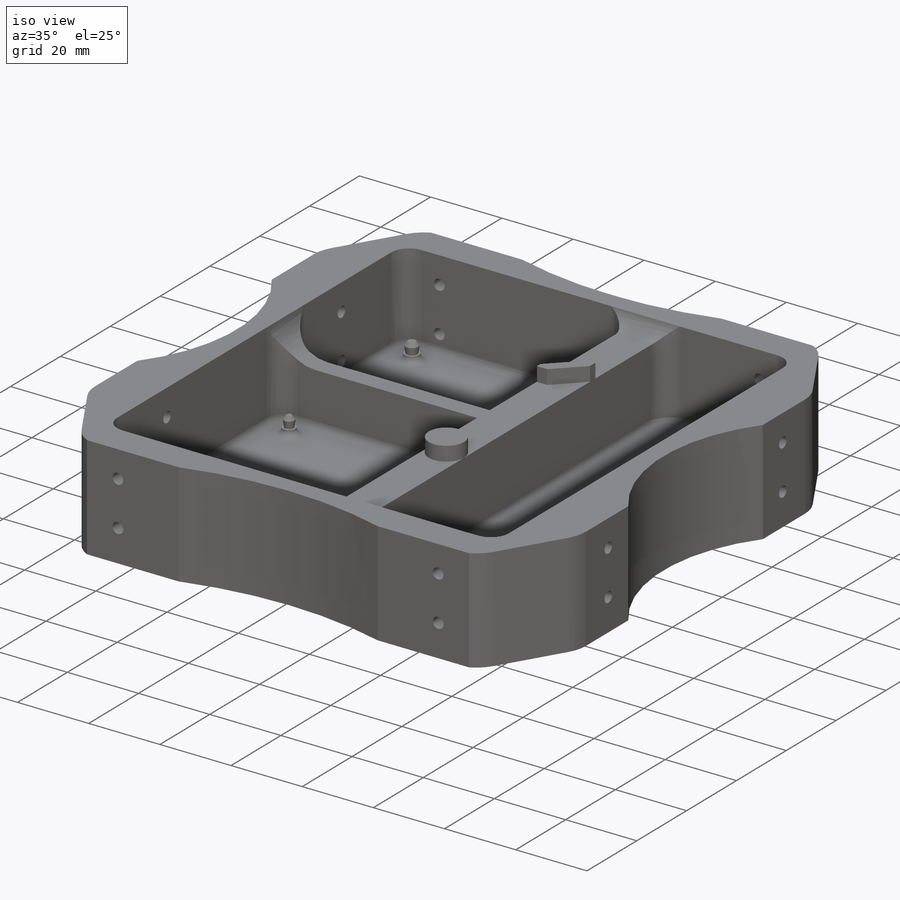
[diagram: iso view]
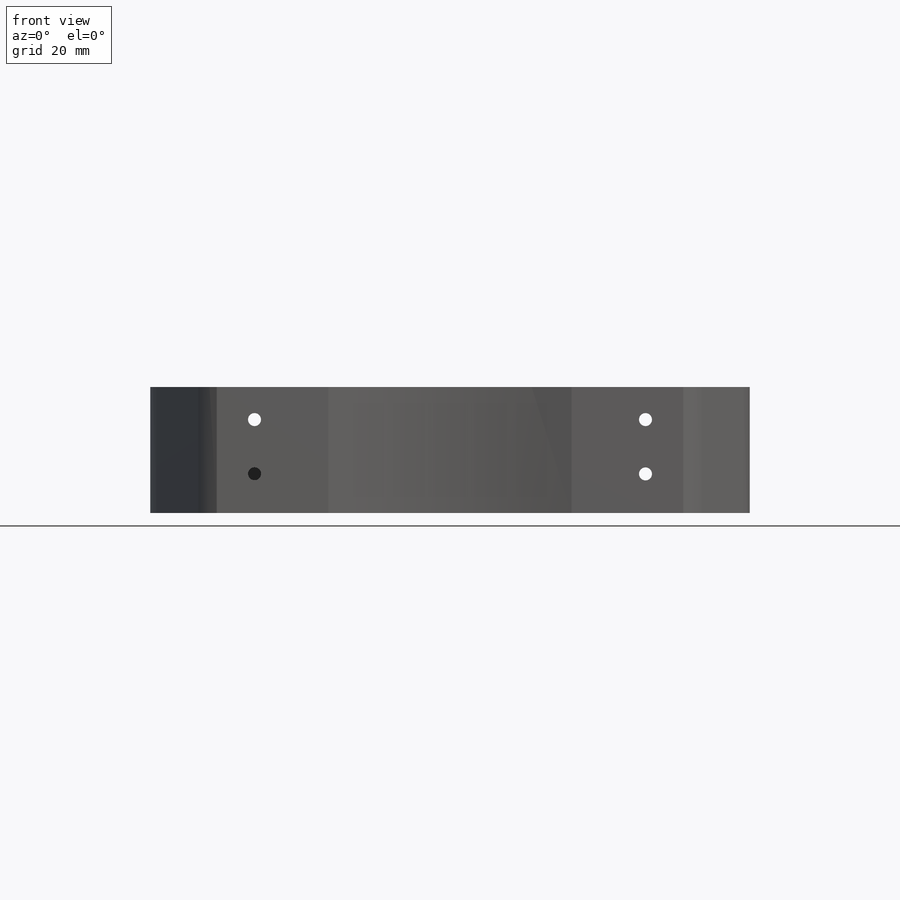
[diagram: front view]
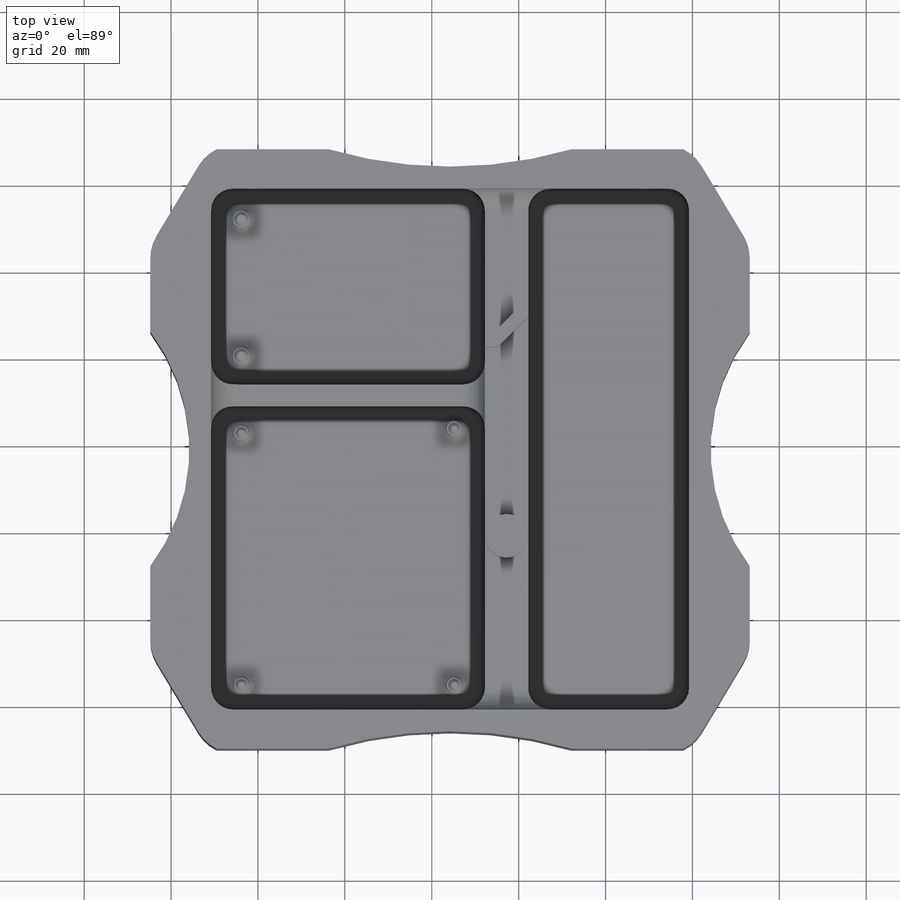
[diagram: top view]
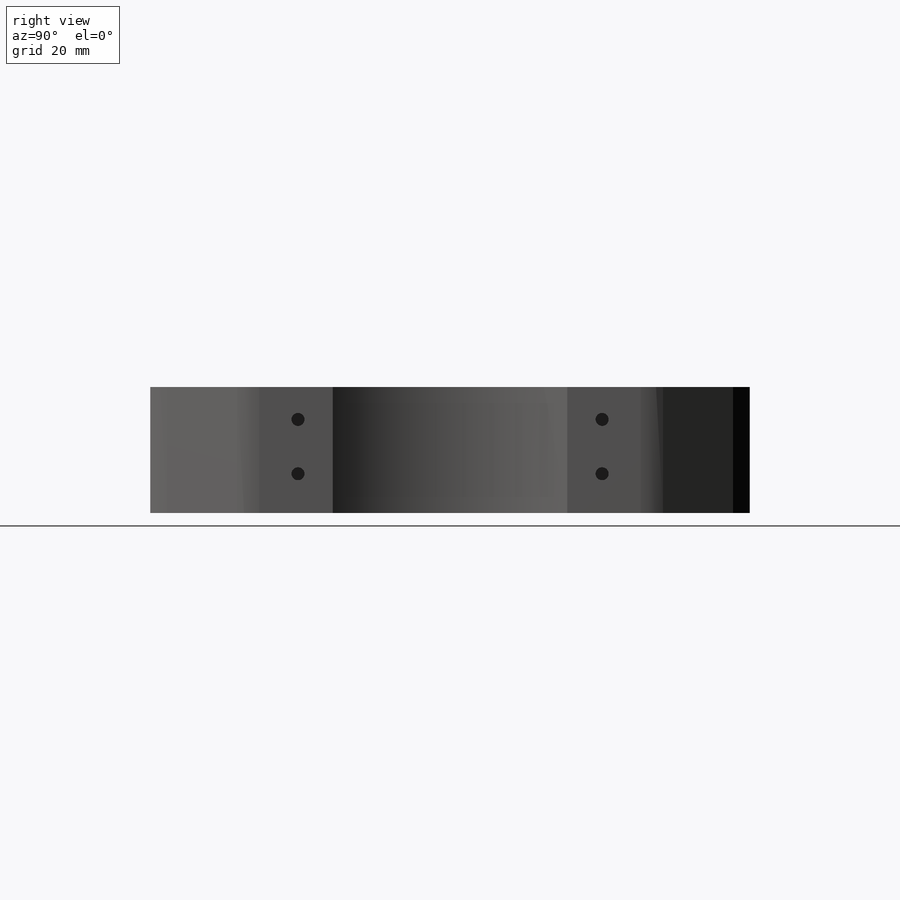
[diagram: right view]
SOLIDWORKS PART (.sldprt)
format: sldprt  version: not decoded by parser v0  size: 968,704 bytes
history: native  units: mm
features: sketch x18, extrude x9, cut_extrude x9, fillet x8, material x1, shell x1, chamfer x1 (+13 scaffold rows collapsed)
feature tree (60):
  scaffold x13  (default folders/planes/origin — collapsed)
  material  "Material <not specified>"
  sketch  "Sketch1"  dims[D1=140.0mm D2=140.0mm]
  extrude  "Boss-Extrude1"  Depth=40mm
  shell  "Shell3"  Thickness=10mm
  sketch  "Sketch3"  dims[D1=5.0mm D2=5.0mm]
  extrude  "Boss-Extrude2"  [1 undecoded]
  sketch  "Sketch4"  dims[D1=15.0mm D2=25.0mm D3=15.0mm D4=25.0mm D5=15.0mm D6=25.0mm D7=15.0mm D8=25.0mm]
  cut_extrude  "Cut-Extrude1"  Depth=40mm
  fillet  "Fillet1"  Radius=10mm
  sketch  "Sketch5"  dims[c1.D1=90.0mm c1.D4=~34.067723mm c1.D5=90.0mm c1.D7=200.0mm c1.D6=~72.687598mm c1.D2=35.0mm c1.D3=0.0mm c2.D4=35.0mm c2.70=95.0mm c2.D8=0.0mm c2.D6=95.0mm]
  cut_extrude  "Cut-Extrude4"  Depth=40mm
  fillet  "Fillet2"  Radius=10mm
  sketch  "Sketch6"  dims[D1=45.0mm D2=70.0mm D3=63.0mm D4=37.0mm]
  extrude  "Boss-Extrude3"  Depth=15mm
  fillet  "Fillet4"  Radius=5mm
  sketch  "Sketch7"  dims[c1.D1=~5.416264mm c1.D9=~3.491426mm c1.D12=3.5mm c1.D13=3.5mm c1.D14=3.5mm c1.D15=3.5mm c2.D1=58.0mm c2.D2=0.0mm c2.D3=49.0mm c2.D4=0.0mm c2.D5=59.0mm c2.D6=7.0mm c2.D7=6.0mm c2.D8=6.0mm c2.D9=31.5mm c2.D10=6.75mm c2.D11=7.0mm]
  extrude  "Boss-Extrude4"  Depth=2mm
  sketch  "Sketch8"  dims[D1=~3.621854mm]
  extrude  "Boss-Extrude5"  Depth=3mm
  chamfer  "Chamfer1"  Distance=1mm Angle=45deg
  fillet  "Fillet7"  Radius=2mm
  sketch  "Sketch9"
  cut_extrude  "Cut-Extrude5"  Depth=5mm
  sketch  "Sketch10"  dims[D1=10.0mm D2=0.0mm D3=37.0mm D4=29.5mm D5=3.0mm]
  extrude  "Boss-Extrude6"  Depth=5mm
  sketch  "Sketch12"
  extrude  "Boss-Extrude7"  Depth=6mm
  fillet  "Fillet8"  Radius=5.1mm
  fillet  "Fillet9"  Radius=6mm
  fillet  "Fillet10"  Radius=10mm
  sketch  "Sketch13"  dims[D1=3.0mm D2=10.0mm D3=29.5mm]
  extrude  "Boss-Extrude8"  Depth=4mm
  sketch  "Sketch14"  dims[D1=5.0mm D2=35.0mm]
  extrude  "Boss-Extrude9"  Depth=4mm
  sketch  "Sketch15"  dims[c1.D1=~2.511715mm c1.D2=~2.126833mm c1.D4=~1.039918mm c1.D5=~2.347353mm c2.D1=25.0mm c2.D2=12.5mm c2.D3=15.0mm c2.D4=25.0mm]
  cut_extrude  "Cut-Extrude6"  Depth=30mm
  sketch  "Sketch16"  dims[c1.D1=~1.542044mm c1.D3=~2.240764mm c1.D4=~2.48713mm c1.D5=~2.264723mm c2.D1=15.0mm c2.D2=35.0mm c2.D3=12.5mm c2.D4=35.0mm]
  cut_extrude  "Cut-Extrude7"  Depth=30mm
  sketch  "Sketch17"  dims[c1.D1=~1.542044mm c1.D3=~1.450418mm c1.D4=~0.800633mm c1.D5=~1.611889mm c2.D1=25.0mm c2.D2=27.5mm c2.D3=15.0mm c2.D4=25.0mm]
  cut_extrude  "Cut-Extrude8"  Depth=30mm
  sketch  "Sketch18"  dims[c1.D1=~1.344503mm c1.D3=~1.321752mm c1.D4=~2.185271mm c1.D5=~1.778821mm c2.D1=27.5mm c2.D2=35.0mm c2.D3=12.5mm c2.D4=35.0mm]
  cut_extrude  "Cut-Extrude9"  Depth=30mm
  sketch  "Sketch20"
  cut_extrude  "Cut-Extrude10"  Depth=6mm
  sketch  "Sketch21"  dims[D1=1.0mm D2=0.0mm D3=1.0mm D4=1.0mm D5=1.0mm]
  cut_extrude  "Cut-Extrude11"  Depth=50mm
  fillet  "Fillet11"  Radius=10mm
decode coverage: 42 of 46 modeling features carry decoded parameters
note: ~ marks probable driven/reference dimensions
note: 1 parameter value undecoded
note: suppression state not decoded; provenance and decode notes live in map.json
